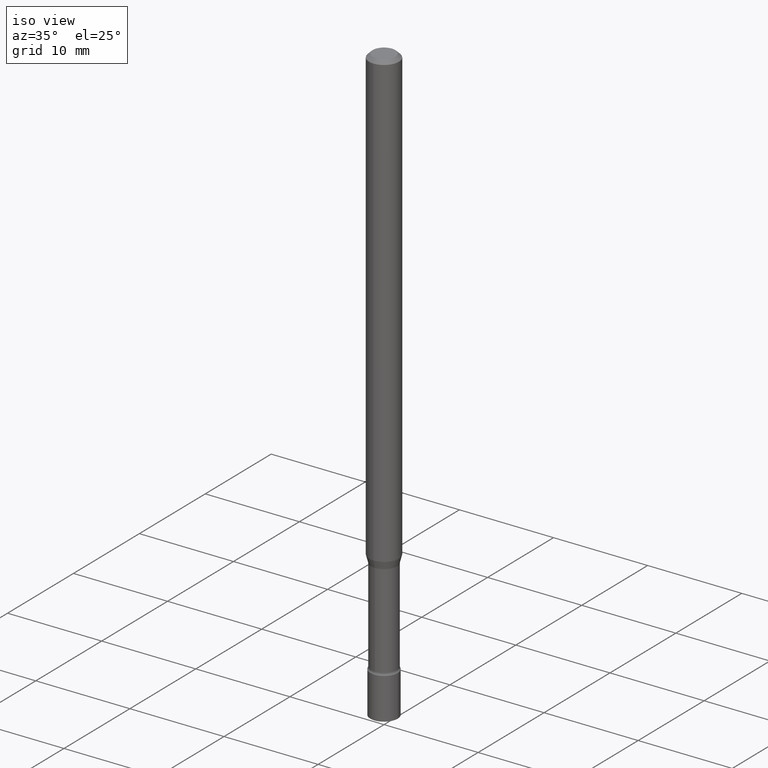
[diagram: clean part render]
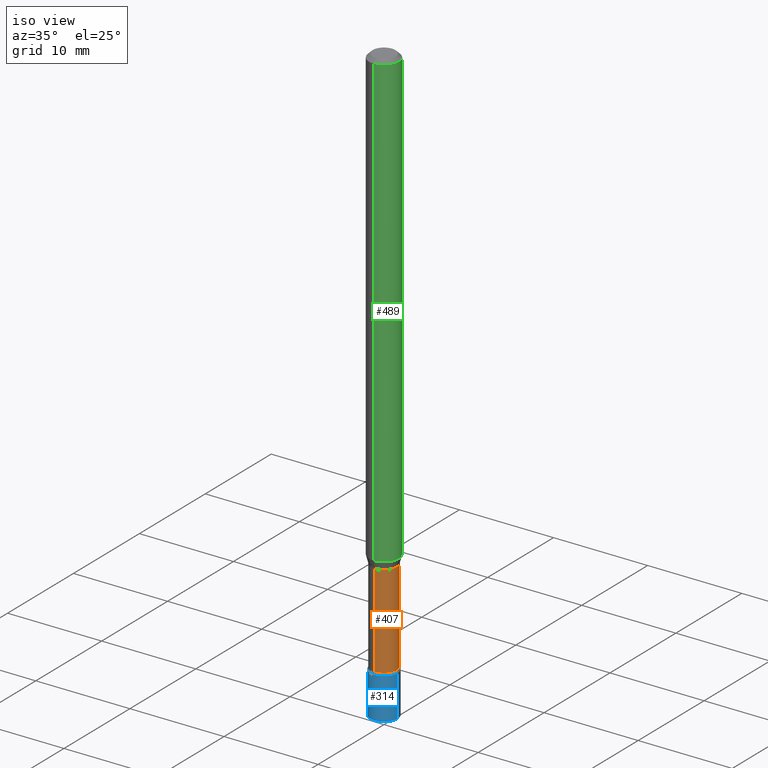
[diagram: same view with three faces highlighted in distinct colors, each labeled with its STEP entity id]
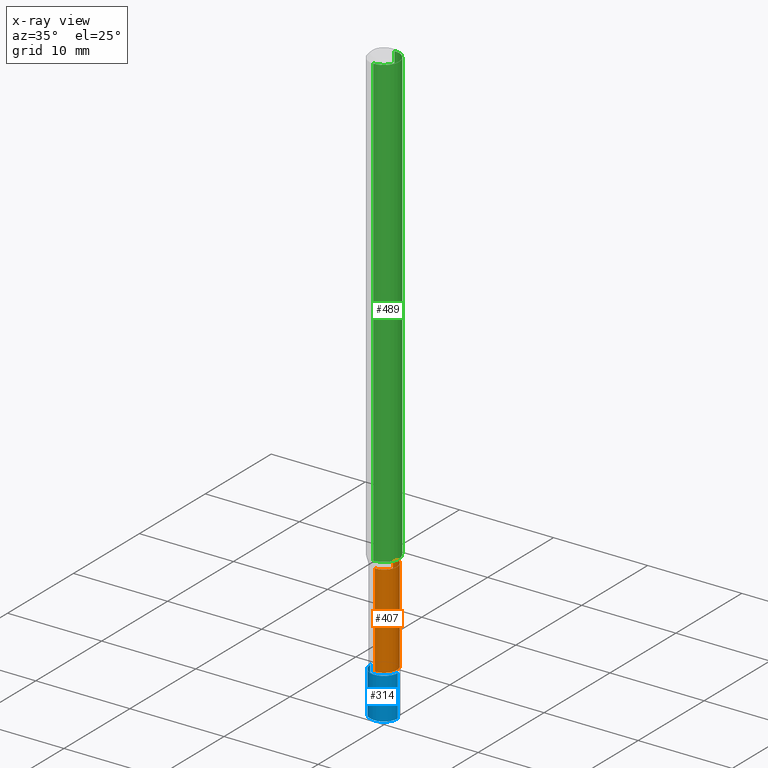
[diagram: x-ray of the same camera — body ghosted, the three highlighted faces saturated]
A machine part, iso view with three faces highlighted in distinct colors.
The next image is the same camera in x-ray (body ghosted, the three faces saturated) — at least one of them is partly hidden behind the body in this view.
Their STEP definitions:

[orange] entity #407 — the highlighted cylindrical surface (edge-blend (fillet) strip) has radius 1.3729 mm, axis along (-0, 0, 1).
#25 = CARTESIAN_POINT ( 'NONE',  ( 3.840483486783343535E-16, 0.05405000000000003552, -1.887121879584992843E-16 ) ) ;
#39 = EDGE_CURVE ( 'NONE', #128, #350, #141, .T. ) ;
#78 = DIRECTION ( 'NONE',  ( -6.982962677686265922E-15, -1.000000000000000000, 5.054297860618433521E-15 ) ) ;
#108 = CARTESIAN_POINT ( 'NONE',  ( -3.774291327288865224E-16, -0.05405000000000816096, -2.317429341715430358 ) ) ;
#122 = DIRECTION ( 'NONE',  ( -2.445499533881974174E-29, 3.491437335032362109E-15, 1.000000000000000000 ) ) ;
#123 = ORIENTED_EDGE ( 'NONE', *, *, #320, .T. ) ;
#128 = VERTEX_POINT ( 'NONE', #108 ) ;
#141 = LINE ( 'NONE', #252, #396 ) ;
#148 = AXIS2_PLACEMENT_3D ( 'NONE', #319, #282, #78 ) ;
#152 = EDGE_CURVE ( 'NONE', #339, #327, #153, .T. ) ;
#153 = LINE ( 'NONE', #25, #246 ) ;
#164 = DIRECTION ( 'NONE',  ( -2.445499533881974174E-29, 3.491437335032362109E-15, 1.000000000000000000 ) ) ;
#169 = DIRECTION ( 'NONE',  ( -2.445499533881974174E-29, 3.491437335032362503E-15, 1.000000000000000000 ) ) ;
#178 = ORIENTED_EDGE ( 'NONE', *, *, #39, .F. ) ;
#199 = ORIENTED_EDGE ( 'NONE', *, *, #152, .T. ) ;
#246 = VECTOR ( 'NONE', #271, 39.37007874015748143 ) ;
#252 = CARTESIAN_POINT ( 'NONE',  ( -3.774291327289429259E-16, -0.05405000000000003552, 1.887121879584992843E-16 ) ) ;
#266 = CIRCLE ( 'NONE', #488, 0.05405000000000007021 ) ;
#271 = DIRECTION ( 'NONE',  ( -2.445499533881974174E-29, 3.491437335032362503E-15, 1.000000000000000000 ) ) ;
#282 = DIRECTION ( 'NONE',  ( -2.445499533881974174E-29, 3.491437335032362109E-15, 1.000000000000000000 ) ) ;
#302 = ORIENTED_EDGE ( 'NONE', *, *, #322, .F. ) ;
#313 = DIRECTION ( 'NONE',  ( -6.982962677686265922E-15, -1.000000000000000000, 5.054297860618426422E-15 ) ) ;
#319 = CARTESIAN_POINT ( 'NONE',  ( 4.712415944545066253E-29, -6.727911716617200935E-15, -1.926974787463811012 ) ) ;
#320 = EDGE_CURVE ( 'NONE', #128, #339, #266, .T. ) ;
#322 = EDGE_CURVE ( 'NONE', #350, #327, #397, .T. ) ;
#327 = VERTEX_POINT ( 'NONE', #364 ) ;
#339 = VERTEX_POINT ( 'NONE', #439 ) ;
#350 = VERTEX_POINT ( 'NONE', #436 ) ;
#364 = CARTESIAN_POINT ( 'NONE',  ( 3.840483486783908557E-16, 0.05404999999999326316, -1.926974787463811456 ) ) ;
#396 = VECTOR ( 'NONE', #169, 39.37007874015748143 ) ;
#397 = CIRCLE ( 'NONE', #148, 0.05405000000000000082 ) ;
#401 = FACE_OUTER_BOUND ( 'NONE', #491, .T. ) ;
#404 = CARTESIAN_POINT ( 'NONE',  ( 0.000000000000000000, 0.000000000000000000, 0.000000000000000000 ) ) ;
#407 = ADVANCED_FACE ( 'NONE', ( #401 ), #518, .T. ) ;
#436 = CARTESIAN_POINT ( 'NONE',  ( -3.774291327288955450E-16, -0.05405000000000673155, -1.926974787463810790 ) ) ;
#439 = CARTESIAN_POINT ( 'NONE',  ( 3.963052108702527624E-16, 0.05404999999999197946, -2.317429341715430802 ) ) ;
#478 = CARTESIAN_POINT ( 'NONE',  ( 5.667272374969495812E-29, -8.091159324964724152E-15, -2.317429341715430802 ) ) ;
#482 = DIRECTION ( 'NONE',  ( -6.982962677686265922E-15, -1.000000000000000000, 3.491437335032361714E-15 ) ) ;
#488 = AXIS2_PLACEMENT_3D ( 'NONE', #478, #122, #313 ) ;
#491 = EDGE_LOOP ( 'NONE', ( #123, #199, #302, #178 ) ) ;
#494 = AXIS2_PLACEMENT_3D ( 'NONE', #404, #164, #482 ) ;
#518 = CYLINDRICAL_SURFACE ( 'NONE', #494, 0.05405000000000003552 ) ;

[blue] entity #314 — the highlighted cylindrical surface (edge-blend (fillet) strip) has radius 1.4605 mm, axis along (-0, 0, 1).
#10 = CARTESIAN_POINT ( 'NONE',  ( 0.05750000000000000250, -4.015203539669603161E-16, 2.803801646082662941E-30 ) ) ;
#42 = ORIENTED_EDGE ( 'NONE', *, *, #357, .F. ) ;
#47 = EDGE_CURVE ( 'NONE', #240, #435, #99, .T. ) ;
#82 = ORIENTED_EDGE ( 'NONE', *, *, #135, .F. ) ;
#94 = VERTEX_POINT ( 'NONE', #214 ) ;
#99 = LINE ( 'NONE', #10, #170 ) ;
#104 = VECTOR ( 'NONE', #432, 39.37007874015748143 ) ;
#115 = CARTESIAN_POINT ( 'NONE',  ( -0.05750000000000000250, 4.085620730620576246E-16, -2.828387676896570712E-30 ) ) ;
#126 = CARTESIAN_POINT ( 'NONE',  ( 0.05750000000000000250, -8.526197429454961062E-15, -2.326999999999999957 ) ) ;
#132 = AXIS2_PLACEMENT_3D ( 'NONE', #251, #365, #411 ) ;
#135 = EDGE_CURVE ( 'NONE', #94, #435, #325, .T. ) ;
#160 = ORIENTED_EDGE ( 'NONE', *, *, #47, .T. ) ;
#170 = VECTOR ( 'NONE', #256, 39.37007874015748143 ) ;
#182 = AXIS2_PLACEMENT_3D ( 'NONE', #265, #466, #349 ) ;
#193 = CARTESIAN_POINT ( 'NONE',  ( 0.05750000000000000250, -9.130223701074824963E-15, -2.500000000000000000 ) ) ;
#194 = DIRECTION ( 'NONE',  ( 1.000000000000000000, -6.982962677686265922E-15, 4.876176775795935232E-29 ) ) ;
#197 = CIRCLE ( 'NONE', #132, 0.05750000000000000250 ) ;
#214 = CARTESIAN_POINT ( 'NONE',  ( -0.05750000000000000250, -8.018128138235874628E-15, -2.326999999999999957 ) ) ;
#230 = CARTESIAN_POINT ( 'NONE',  ( 0.000000000000000000, 0.000000000000000000, 0.000000000000000000 ) ) ;
#235 = AXIS2_PLACEMENT_3D ( 'NONE', #230, #276, #194 ) ;
#240 = VERTEX_POINT ( 'NONE', #193 ) ;
#248 = EDGE_LOOP ( 'NONE', ( #42, #484, #160, #82 ) ) ;
#251 = CARTESIAN_POINT ( 'NONE',  ( 6.113672015462842613E-29, -8.728703347107864943E-15, -2.500000000000000000 ) ) ;
#256 = DIRECTION ( 'NONE',  ( -2.445468806185136877E-29, 3.491481338843145188E-15, 1.000000000000000000 ) ) ;
#265 = CARTESIAN_POINT ( 'NONE',  ( 5.690605911992812897E-29, -8.124677075487999464E-15, -2.326999999999999957 ) ) ;
#275 = CYLINDRICAL_SURFACE ( 'NONE', #235, 0.05750000000000000250 ) ;
#276 = DIRECTION ( 'NONE',  ( -2.445468806185136597E-29, 3.491481338843145583E-15, 1.000000000000000000 ) ) ;
#314 = ADVANCED_FACE ( 'NONE', ( #323 ), #275, .T. ) ;
#323 = FACE_OUTER_BOUND ( 'NONE', #248, .T. ) ;
#325 = CIRCLE ( 'NONE', #182, 0.05750000000000000250 ) ;
#349 = DIRECTION ( 'NONE',  ( 1.000000000000000000, -6.982962677686273810E-15, 0.000000000000000000 ) ) ;
#357 = EDGE_CURVE ( 'NONE', #476, #94, #471, .T. ) ;
#365 = DIRECTION ( 'NONE',  ( -2.445468806185136597E-29, 3.491481338843145583E-15, 1.000000000000000000 ) ) ;
#376 = CARTESIAN_POINT ( 'NONE',  ( -0.05750000000000000250, -8.018128138235874628E-15, -2.500000000000000000 ) ) ;
#411 = DIRECTION ( 'NONE',  ( 1.000000000000000000, -6.982962677686256455E-15, 0.000000000000000000 ) ) ;
#432 = DIRECTION ( 'NONE',  ( -2.445468806185136877E-29, 3.491481338843145188E-15, 1.000000000000000000 ) ) ;
#435 = VERTEX_POINT ( 'NONE', #126 ) ;
#466 = DIRECTION ( 'NONE',  ( -2.445468806185136597E-29, 3.491481338843145583E-15, 1.000000000000000000 ) ) ;
#471 = LINE ( 'NONE', #115, #104 ) ;
#476 = VERTEX_POINT ( 'NONE', #376 ) ;
#480 = EDGE_CURVE ( 'NONE', #476, #240, #197, .T. ) ;
#484 = ORIENTED_EDGE ( 'NONE', *, *, #480, .T. ) ;

[green] entity #489 — the highlighted cylindrical surface (edge-blend (fillet) strip) has radius 1.5875 mm, axis along (-0, 0, 1).
#16 = DIRECTION ( 'NONE',  ( -2.445499533881974174E-29, 3.491437335032362503E-15, 1.000000000000000000 ) ) ;
#31 = DIRECTION ( 'NONE',  ( -6.982962677686265922E-15, -1.000000000000000000, 4.370956789862821150E-15 ) ) ;
#50 = CARTESIAN_POINT ( 'NONE',  ( 4.440892098500625669E-16, 0.06250000000000000000, -2.182148334395226318E-16 ) ) ;
#57 = CARTESIAN_POINT ( 'NONE',  ( -4.364351673553916201E-16, -0.06250000000000000000, 2.182148334395226318E-16 ) ) ;
#59 = DIRECTION ( 'NONE',  ( -6.982962677686265922E-15, -1.000000000000000000, 3.491437335032362109E-15 ) ) ;
#63 = EDGE_CURVE ( 'NONE', #377, #337, #414, .T. ) ;
#88 = DIRECTION ( 'NONE',  ( -2.445499533881974174E-29, 3.491437335032362503E-15, 1.000000000000000000 ) ) ;
#90 = DIRECTION ( 'NONE',  ( -2.445499533881974174E-29, 3.491437335032362109E-15, 1.000000000000000000 ) ) ;
#97 = AXIS2_PLACEMENT_3D ( 'NONE', #213, #90, #59 ) ;
#159 = CARTESIAN_POINT ( 'NONE',  ( 4.440892098501091590E-16, 0.06249999999999995143, -0.01500000000000024751 ) ) ;
#175 = VERTEX_POINT ( 'NONE', #220 ) ;
#176 = LINE ( 'NONE', #50, #309 ) ;
#206 = ORIENTED_EDGE ( 'NONE', *, *, #63, .F. ) ;
#210 = CYLINDRICAL_SURFACE ( 'NONE', #97, 0.06250000000000000000 ) ;
#213 = CARTESIAN_POINT ( 'NONE',  ( 0.000000000000000000, 0.000000000000000000, 0.000000000000000000 ) ) ;
#219 = AXIS2_PLACEMENT_3D ( 'NONE', #227, #391, #31 ) ;
#220 = CARTESIAN_POINT ( 'NONE',  ( 4.440892098501089617E-16, 0.06249999999999341499, -1.893464170676043556 ) ) ;
#227 = CARTESIAN_POINT ( 'NONE',  ( 4.630465746810483231E-29, -6.610911498044426142E-15, -1.893464170676043334 ) ) ;
#229 = EDGE_CURVE ( 'NONE', #377, #175, #470, .T. ) ;
#231 = ORIENTED_EDGE ( 'NONE', *, *, #229, .T. ) ;
#233 = VECTOR ( 'NONE', #16, 39.37007874015748143 ) ;
#237 = CARTESIAN_POINT ( 'NONE',  ( -4.364351673553451266E-16, -0.06250000000000657807, -1.893464170676043112 ) ) ;
#241 = CARTESIAN_POINT ( 'NONE',  ( 3.668249300822969055E-31, -5.237156002548554183E-17, -0.01500000000000003067 ) ) ;
#245 = DIRECTION ( 'NONE',  ( -2.445499533881974174E-29, 3.491437335032362109E-15, 1.000000000000000000 ) ) ;
#309 = VECTOR ( 'NONE', #88, 39.37007874015748143 ) ;
#318 = VERTEX_POINT ( 'NONE', #159 ) ;
#332 = AXIS2_PLACEMENT_3D ( 'NONE', #241, #245, #361 ) ;
#337 = VERTEX_POINT ( 'NONE', #434 ) ;
#355 = ORIENTED_EDGE ( 'NONE', *, *, #395, .F. ) ;
#361 = DIRECTION ( 'NONE',  ( -6.982962677686265922E-15, -1.000000000000000000, 3.483106191921935554E-15 ) ) ;
#372 = FACE_OUTER_BOUND ( 'NONE', #393, .T. ) ;
#377 = VERTEX_POINT ( 'NONE', #237 ) ;
#391 = DIRECTION ( 'NONE',  ( -2.445499533881974174E-29, 3.491437335032362109E-15, 1.000000000000000000 ) ) ;
#393 = EDGE_LOOP ( 'NONE', ( #231, #511, #355, #206 ) ) ;
#395 = EDGE_CURVE ( 'NONE', #337, #318, #415, .T. ) ;
#414 = LINE ( 'NONE', #57, #233 ) ;
#415 = CIRCLE ( 'NONE', #332, 0.06250000000000000000 ) ;
#434 = CARTESIAN_POINT ( 'NONE',  ( -4.364351673553912750E-16, -0.06250000000000005551, -0.01499999999999981209 ) ) ;
#465 = EDGE_CURVE ( 'NONE', #175, #318, #176, .T. ) ;
#470 = CIRCLE ( 'NONE', #219, 0.06250000000000000000 ) ;
#489 = ADVANCED_FACE ( 'NONE', ( #372 ), #210, .T. ) ;
#511 = ORIENTED_EDGE ( 'NONE', *, *, #465, .T. ) ;